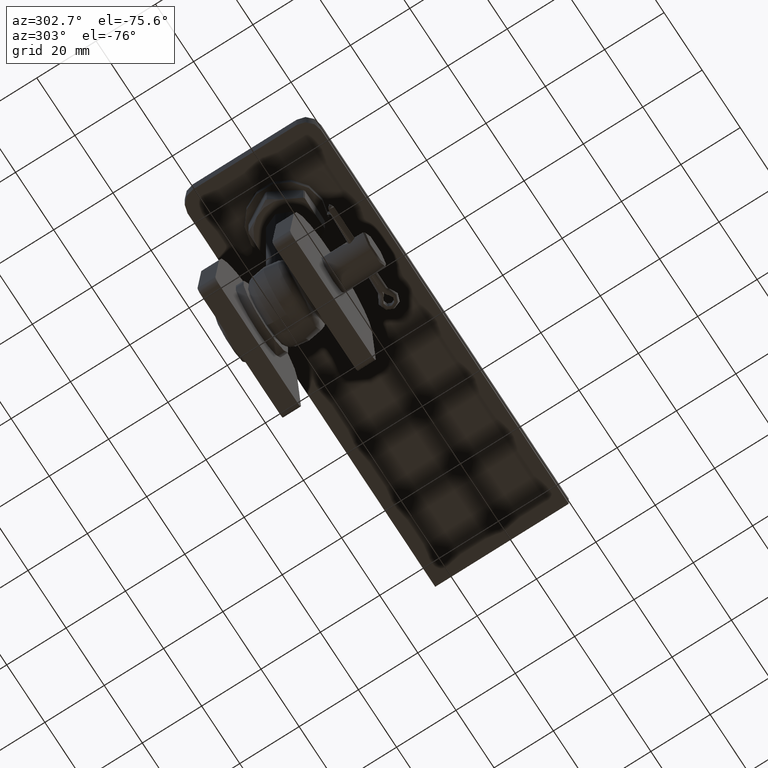
[diagram: clean part render]
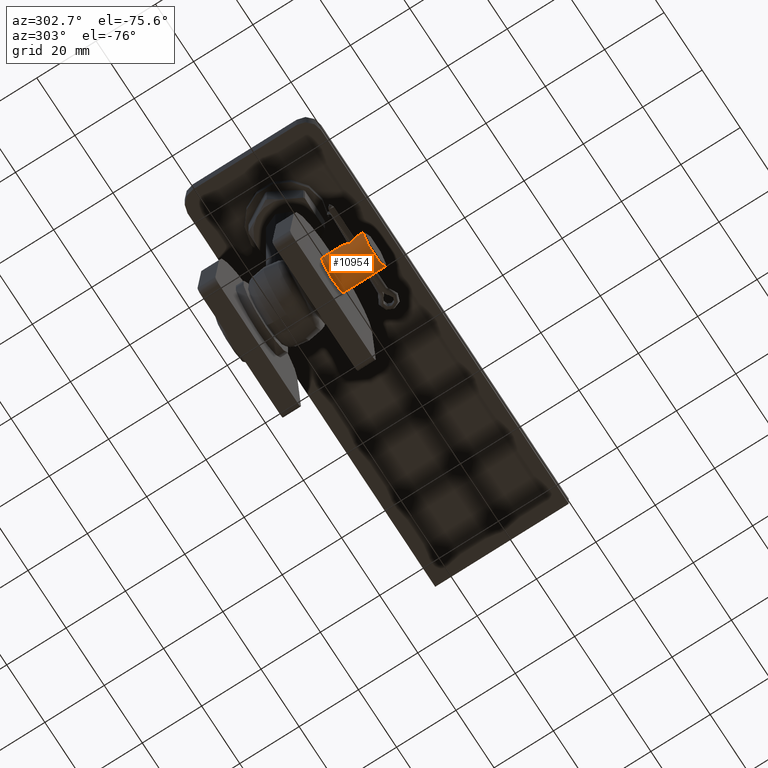
[diagram: same view with one face highlighted and labeled with its STEP entity id]
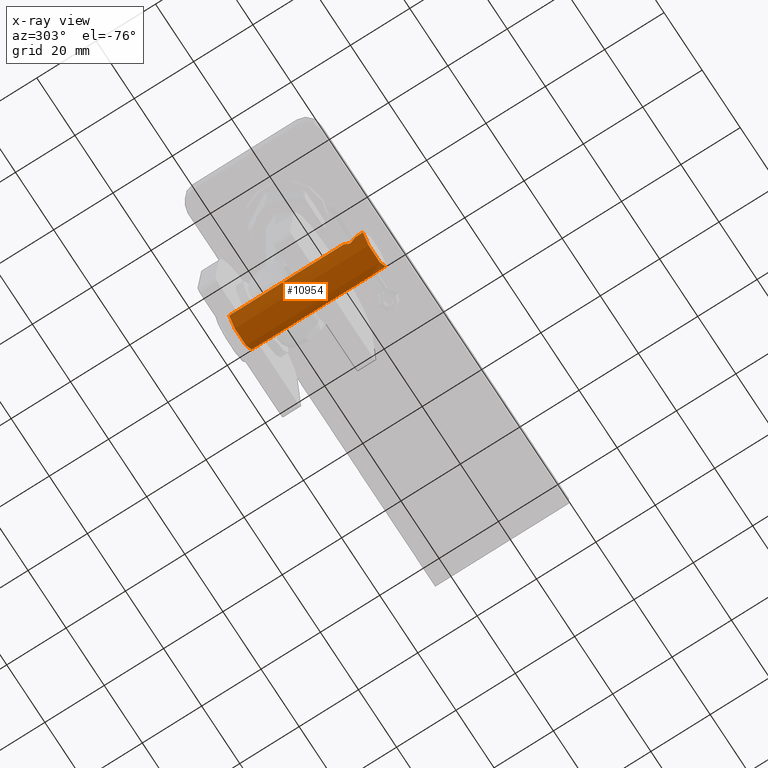
[diagram: x-ray of the same camera — body ghosted, the highlighted face saturated]
A machine part, auxiliary view. The second image highlights one B-rep face of the part: STEP entity #10954.
The next image is the same camera in x-ray: the body ghosted, the highlighted face saturated — about 1% of this face is hidden behind the body in this view.
In plain terms, the highlighted cylindrical surface (edge-blend (fillet) strip) has radius 5.9 mm, axis along (0, -1, -0).
Its self-contained STEP definition (entity closure, byte-faithful):
#316 = EDGE_CURVE ( 'NONE', #7649, #2120, #9481, .T. ) ;
#506 = DIRECTION ( 'NONE',  ( 6.129713608430679563E-17, -1.000000000000000000, 4.379057701015053347E-47 ) ) ;
#607 = ORIENTED_EDGE ( 'NONE', *, *, #3860, .T. ) ;
#630 = CARTESIAN_POINT ( 'NONE',  ( -5.555522010884786255, 44.26511975377648156, -1.986687002289867499 ) ) ;
#794 = ORIENTED_EDGE ( 'NONE', *, *, #4183, .T. ) ;
#848 = CARTESIAN_POINT ( 'NONE',  ( -5.900000000000003908, 41.99999999999999289, -0.1332516552440318192 ) ) ;
#921 = CARTESIAN_POINT ( 'NONE',  ( 5.878374954491230042, 45.93542901542142687, -0.5210698131243338693 ) ) ;
#986 = CARTESIAN_POINT ( 'NONE',  ( 5.895599326630836856, 42.01287025599111757, -0.2621545054870087488 ) ) ;
#1029 = CARTESIAN_POINT ( 'NONE',  ( 5.639810616716879110, 45.00432882881328567, -1.734419091715369010 ) ) ;
#1079 = CARTESIAN_POINT ( 'NONE',  ( 5.620304320527619524, 44.89003424455704305, -1.795826110056595981 ) ) ;
#1267 = FACE_OUTER_BOUND ( 'NONE', #3287, .T. ) ;
#1288 = DIRECTION ( 'NONE',  ( -6.129713608430659842E-17, 1.000000000000000000, -8.758115402030106693E-47 ) ) ;
#1361 = CARTESIAN_POINT ( 'NONE',  ( -5.900000000000002132, 49.00000000000000000, 0.000000000000000000 ) ) ;
#1555 = B_SPLINE_CURVE_WITH_KNOTS ( 'NONE', 3,
 ( #10265, #14382, #7636, #11835, #10378, #6280, #11613, #3800, #14273, #3854, #2452, #15722, #6220, #986, #11779, #5089 ),
 .UNSPECIFIED., .F., .F.,
 ( 4, 2, 2, 2, 2, 2, 2, 4 ),
 ( 0.000000000000000000, 0.0003938510962532042127, 0.0007877021925064084254, 0.001181553288759612692, 0.001575404385012816851, 0.002363106577519240130, 0.002756957673772455347, 0.003150808770025670998 ),
 .UNSPECIFIED. ) ;
#1689 = VERTEX_POINT ( 'NONE', #17169 ) ;
#1711 = CARTESIAN_POINT ( 'NONE',  ( -5.900000000000002132, 46.00000000000000000, 1.136091727279354788E-19 ) ) ;
#1752 = CARTESIAN_POINT ( 'NONE',  ( 5.900000000000000355, 3.399999999999986589, 7.225416114969385180E-16 ) ) ;
#1822 = CARTESIAN_POINT ( 'NONE',  ( -5.550675634551168969, 44.13152751276364683, -2.000000000000001776 ) ) ;
#2120 = VERTEX_POINT ( 'NONE', #6921 ) ;
#2316 = CARTESIAN_POINT ( 'NONE',  ( -5.573563969748891900, 43.47916577028971830, -1.935493276981657518 ) ) ;
#2391 = CARTESIAN_POINT ( 'NONE',  ( 5.587117308741708754, 44.64824387600961586, -1.896558001027449425 ) ) ;
#2452 = CARTESIAN_POINT ( 'NONE',  ( 5.818163038907217199, 42.25356430285038556, -1.008865050652530737 ) ) ;
#2648 = CARTESIAN_POINT ( 'NONE',  ( -5.865486782326236437, 42.10362839363019560, -0.6488026437898942733 ) ) ;
#2781 = VECTOR ( 'NONE', #1288, 1000.000000000000000 ) ;
#2871 = EDGE_CURVE ( 'NONE', #16589, #6365, #3002, .T. ) ;
#3002 = LINE ( 'NONE', #13485, #2781 ) ;
#3104 = CARTESIAN_POINT ( 'NONE',  ( -5.750927284106918336, 45.50701587245850277, -1.321294826407360956 ) ) ;
#3112 = VECTOR ( 'NONE', #12003, 1000.000000000000000 ) ;
#3211 = CARTESIAN_POINT ( 'NONE',  ( 5.900000000000996891, 41.99999999999704414, 2.951550274720281320E-13 ) ) ;
#3286 = CARTESIAN_POINT ( 'NONE',  ( -5.705515379762269745, 45.32319233728897956, -1.505350091066005147 ) ) ;
#3287 = EDGE_LOOP ( 'NONE', ( #4195, #15633, #3293, #4828, #794, #607, #5028, #4741, #3941, #4431 ) ) ;
#3293 = ORIENTED_EDGE ( 'NONE', *, *, #4512, .T. ) ;
#3419 = AXIS2_PLACEMENT_3D ( 'NONE', #4623, #8747, #11336 ) ;
#3544 = CYLINDRICAL_SURFACE ( 'NONE', #3419, 5.899999999999999467 ) ;
#3616 = CARTESIAN_POINT ( 'NONE',  ( -5.550675634551172521, 43.86838859694345416, -2.000000000000001332 ) ) ;
#3672 = CARTESIAN_POINT ( 'NONE',  ( -5.636520386917011294, 42.99151441506769800, -1.746630746085015673 ) ) ;
#3800 = CARTESIAN_POINT ( 'NONE',  ( 5.682510066624671730, 42.77844200055197632, -1.588962498794751488 ) ) ;
#3854 = CARTESIAN_POINT ( 'NONE',  ( 5.773340165744793140, 42.40221911355585149, -1.230499860934768819 ) ) ;
#3860 = EDGE_CURVE ( 'NONE', #10034, #8477, #12275, .T. ) ;
#3941 = ORIENTED_EDGE ( 'NONE', *, *, #14162, .T. ) ;
#4023 = DIRECTION ( 'NONE',  ( -6.129713608430659842E-17, 1.000000000000000000, -8.758115402030106693E-47 ) ) ;
#4027 = CARTESIAN_POINT ( 'NONE',  ( 5.899999999999997691, 49.00000000000000000, 7.225416114969384193E-16 ) ) ;
#4183 = EDGE_CURVE ( 'NONE', #10858, #10034, #5209, .T. ) ;
#4195 = ORIENTED_EDGE ( 'NONE', *, *, #5309, .F. ) ;
#4381 = CARTESIAN_POINT ( 'NONE',  ( -5.900000000000001243, 45.99999999999999289, -0.1311765982400691921 ) ) ;
#4386 = EDGE_CURVE ( 'NONE', #14621, #7778, #1555, .T. ) ;
#4431 = ORIENTED_EDGE ( 'NONE', *, *, #4386, .T. ) ;
#4512 = EDGE_CURVE ( 'NONE', #2120, #1689, #16805, .T. ) ;
#4623 = CARTESIAN_POINT ( 'NONE',  ( -3.003559668131025122E-15, 49.00000000000000000, 0.000000000000000000 ) ) ;
#4741 = ORIENTED_EDGE ( 'NONE', *, *, #2871, .F. ) ;
#4811 = AXIS2_PLACEMENT_3D ( 'NONE', #12622, #506, #10009 ) ;
#4828 = ORIENTED_EDGE ( 'NONE', *, *, #15833, .T. ) ;
#4852 = CARTESIAN_POINT ( 'NONE',  ( 5.705341729613110147, 45.32242786799923806, -1.505984244638788327 ) ) ;
#4910 = CARTESIAN_POINT ( 'NONE',  ( 5.573582263797199232, 44.52078962926324124, -1.935438627828777403 ) ) ;
#4945 = CARTESIAN_POINT ( 'NONE',  ( -5.550675634551168969, 44.00000000000000000, -2.000000000000000888 ) ) ;
#4999 = CARTESIAN_POINT ( 'NONE',  ( -5.750358196939544086, 42.49517398356263698, -1.323729845256276461 ) ) ;
#5028 = ORIENTED_EDGE ( 'NONE', *, *, #16324, .T. ) ;
#5089 = CARTESIAN_POINT ( 'NONE',  ( 5.900000000000996891, 41.99999999999704414, 2.951550274720281320E-13 ) ) ;
#5209 = B_SPLINE_CURVE_WITH_KNOTS ( 'NONE', 3,
 ( #8394, #1822, #630, #7178, #15075, #13919, #13756, #11078, #3286, #3104, #12404, #9839, #5769, #7121, #9901, #16419, #4381, #1711 ),
 .UNSPECIFIED., .F., .F.,
 ( 4, 2, 2, 2, 2, 2, 2, 2, 4 ),
 ( 0.003150978226249538227, 0.003544599446795418211, 0.003938220667341298629, 0.004331841887887178180, 0.004725463108433058598, 0.005119084328978939016, 0.005512705549524818567, 0.005906326770070698985, 0.006299947990616579403 ),
 .UNSPECIFIED. ) ;
#5309 = EDGE_CURVE ( 'NONE', #7649, #7778, #14236, .T. ) ;
#5769 = CARTESIAN_POINT ( 'NONE',  ( -5.834011360990279726, 45.79664816083570855, -0.8882865382681676136 ) ) ;
#5860 = AXIS2_PLACEMENT_3D ( 'NONE', #15315, #16609, #7235 ) ;
#6035 = CARTESIAN_POINT ( 'NONE',  ( -5.900000000000002132, 48.50000000000000000, 2.018745600167939966E-45 ) ) ;
#6085 = CARTESIAN_POINT ( 'NONE',  ( -5.900000000000003908, 41.99999999999999289, -2.618725969575589285E-31 ) ) ;
#6220 = CARTESIAN_POINT ( 'NONE',  ( 5.878387453272812202, 42.06453306663481584, -0.5209389159219351972 ) ) ;
#6280 = CARTESIAN_POINT ( 'NONE',  ( 5.620361640698056327, 43.10960785668599726, -1.795647244238945728 ) ) ;
#6365 = VERTEX_POINT ( 'NONE', #14719 ) ;
#6800 = DIRECTION ( 'NONE',  ( -6.129713608430659842E-17, 1.000000000000000000, -8.758115402030106693E-47 ) ) ;
#6921 = CARTESIAN_POINT ( 'NONE',  ( -5.899999999999999467, 3.399999999999986144, -5.473822126268816683E-45 ) ) ;
#7121 = CARTESIAN_POINT ( 'NONE',  ( -5.865616418737308102, 45.89676356603328600, -0.6475226347174090069 ) ) ;
#7178 = CARTESIAN_POINT ( 'NONE',  ( -5.573726201817198245, 44.52238629694961958, -1.935026171830568575 ) ) ;
#7235 = DIRECTION ( 'NONE',  ( -1.000000000000000000, -7.350523203291556237E-17, 0.000000000000000000 ) ) ;
#7479 = CARTESIAN_POINT ( 'NONE',  ( 5.900000000000265032, 46.00000000000078870, 6.985093512761478824E-14 ) ) ;
#7636 = CARTESIAN_POINT ( 'NONE',  ( 5.555475045518475596, 43.73592520360117675, -1.986816811580287556 ) ) ;
#7649 = VERTEX_POINT ( 'NONE', #1752 ) ;
#7672 = CARTESIAN_POINT ( 'NONE',  ( 5.895588975440277046, 45.98709907540573028, -0.2623670871246310821 ) ) ;
#7778 = VERTEX_POINT ( 'NONE', #3211 ) ;
#7938 = CARTESIAN_POINT ( 'NONE',  ( 5.550675634551163640, 44.00000000000000000, -2.000000000000000888 ) ) ;
#8394 = CARTESIAN_POINT ( 'NONE',  ( -5.550675634551168969, 44.00000000000000000, -2.000000000000000888 ) ) ;
#8477 = VERTEX_POINT ( 'NONE', #6035 ) ;
#8602 = VECTOR ( 'NONE', #6800, 1000.000000000000000 ) ;
#8747 = DIRECTION ( 'NONE',  ( -6.129713608430659842E-17, 1.000000000000000000, -8.758115402030106693E-47 ) ) ;
#8786 = CARTESIAN_POINT ( 'NONE',  ( 5.773235008116887279, 45.59743773479016227, -1.231019385758636009 ) ) ;
#8892 = CARTESIAN_POINT ( 'NONE',  ( -5.587100216405382014, 43.35203464299526388, -1.896597329605877347 ) ) ;
#9310 = CARTESIAN_POINT ( 'NONE',  ( -5.900000000000002132, 49.00000000000000000, 0.000000000000000000 ) ) ;
#9341 = CARTESIAN_POINT ( 'NONE',  ( -5.833657514709226888, 42.20449169460976435, -0.8906851662114491086 ) ) ;
#9481 = CIRCLE ( 'NONE', #5860, 5.899999999999999467 ) ;
#9839 = CARTESIAN_POINT ( 'NONE',  ( -5.814765802820893725, 45.73387145799424758, -1.005285777694050475 ) ) ;
#9901 = CARTESIAN_POINT ( 'NONE',  ( -5.878233505568982054, 45.93500093197677359, -0.5227012412732552349 ) ) ;
#10009 = DIRECTION ( 'NONE',  ( 1.000000000000000000, 0.000000000000000000, 0.000000000000000000 ) ) ;
#10034 = VERTEX_POINT ( 'NONE', #14436 ) ;
#10121 = CARTESIAN_POINT ( 'NONE',  ( -5.895494527533561957, 42.01318229712092744, -0.2640867251274089944 ) ) ;
#10142 = CARTESIAN_POINT ( 'NONE',  ( 5.682249950057292942, 45.22031844158775016, -1.589877002542363638 ) ) ;
#10265 = CARTESIAN_POINT ( 'NONE',  ( 5.550675634551163640, 44.00000000000000000, -2.000000000000000888 ) ) ;
#10293 = CARTESIAN_POINT ( 'NONE',  ( -5.682547236286341175, 42.77001183779141513, -1.598179368125638433 ) ) ;
#10378 = CARTESIAN_POINT ( 'NONE',  ( 5.587166169225694645, 43.35134061389256033, -1.896414563177825530 ) ) ;
#10591 = B_SPLINE_CURVE_WITH_KNOTS ( 'NONE', 3,
 ( #6085, #848, #10121, #16979, #2648, #9341, #14243, #12947, #4999, #10293, #3672, #8892, #2316, #11638, #3616, #4945 ),
 .UNSPECIFIED., .F., .F.,
 ( 4, 2, 2, 2, 2, 2, 2, 4 ),
 ( 0.000000000000000000, 0.0003938722782811907063, 0.0007877445565623814126, 0.001181616834843572444, 0.001575489113124763476, 0.002363233669687160501, 0.002757105947968348930, 0.003150978226249538227 ),
 .UNSPECIFIED. ) ;
#10858 = VERTEX_POINT ( 'NONE', #15984 ) ;
#10954 = ADVANCED_FACE ( 'NONE', ( #1267 ), #3544, .T. ) ;
#11078 = CARTESIAN_POINT ( 'NONE',  ( -5.682498466873040499, 45.22145324877805450, -1.588986457125476814 ) ) ;
#11336 = DIRECTION ( 'NONE',  ( -1.000000000000000000, 0.000000000000000000, 0.000000000000000000 ) ) ;
#11613 = CARTESIAN_POINT ( 'NONE',  ( 5.639902868125350466, 42.99511809121005257, -1.734133246892582969 ) ) ;
#11638 = CARTESIAN_POINT ( 'NONE',  ( -5.555361702166335292, 43.73789961493475431, -1.987135100648104169 ) ) ;
#11651 = CARTESIAN_POINT ( 'NONE',  ( 5.555474431772287502, 44.26400520583703724, -1.986818001562003166 ) ) ;
#11712 = CARTESIAN_POINT ( 'NONE',  ( 5.550675634551162752, 44.13320091186650274, -2.000000000000001776 ) ) ;
#11779 = CARTESIAN_POINT ( 'NONE',  ( 5.900000000000009237, 41.99999999999995737, -0.1316382662648614421 ) ) ;
#11835 = CARTESIAN_POINT ( 'NONE',  ( 5.573608027290543276, 43.47890599831494285, -1.935364973920682630 ) ) ;
#12003 = DIRECTION ( 'NONE',  ( -6.129713608430659842E-17, 1.000000000000000000, -8.758115402030106693E-47 ) ) ;
#12275 = LINE ( 'NONE', #1361, #3112 ) ;
#12404 = CARTESIAN_POINT ( 'NONE',  ( -5.773250987007370938, 45.58909906870948703, -1.221341016058853146 ) ) ;
#12622 = CARTESIAN_POINT ( 'NONE',  ( -2.972911100088870529E-15, 48.50000000000000000, 0.000000000000000000 ) ) ;
#12932 = CIRCLE ( 'NONE', #4811, 5.899999999999999467 ) ;
#12947 = CARTESIAN_POINT ( 'NONE',  ( -5.773124037455564128, 42.41135148559263968, -1.221972236183714866 ) ) ;
#13485 = CARTESIAN_POINT ( 'NONE',  ( 5.899999999999997691, 49.00000000000000000, 7.225416114969384193E-16 ) ) ;
#13756 = CARTESIAN_POINT ( 'NONE',  ( -5.640107500936399454, 45.00596810836876216, -1.733451517875132186 ) ) ;
#13919 = CARTESIAN_POINT ( 'NONE',  ( -5.620411466758669761, 44.89081106972703594, -1.795500579964752541 ) ) ;
#14162 = EDGE_CURVE ( 'NONE', #16589, #14621, #17066, .T. ) ;
#14236 = LINE ( 'NONE', #4027, #8602 ) ;
#14243 = CARTESIAN_POINT ( 'NONE',  ( -5.814780710730587110, 42.26606872559321459, -1.005237575882717227 ) ) ;
#14273 = CARTESIAN_POINT ( 'NONE',  ( 5.705541065015032665, 42.67672352945655234, -1.505223504904761089 ) ) ;
#14382 = CARTESIAN_POINT ( 'NONE',  ( 5.550675634551165416, 43.86674138672847789, -2.000000000000001332 ) ) ;
#14436 = CARTESIAN_POINT ( 'NONE',  ( -5.900000000000002132, 46.00000000000000000, 1.136091727279354788E-19 ) ) ;
#14621 = VERTEX_POINT ( 'NONE', #7938 ) ;
#14719 = CARTESIAN_POINT ( 'NONE',  ( 5.899999999999997691, 48.50000000000000000, 7.225416114969384193E-16 ) ) ;
#15075 = CARTESIAN_POINT ( 'NONE',  ( -5.587016900554445442, 44.64751614138711489, -1.896863079203431113 ) ) ;
#15315 = CARTESIAN_POINT ( 'NONE',  ( -2.084102626866440173E-16, 3.399999999999986144, -5.473822126268816683E-45 ) ) ;
#15485 = CARTESIAN_POINT ( 'NONE',  ( 5.900000000000265032, 46.00000000000078870, 6.985093512761478824E-14 ) ) ;
#15540 = CARTESIAN_POINT ( 'NONE',  ( 5.550675634551163640, 44.00000000000000000, -2.000000000000000888 ) ) ;
#15590 = CARTESIAN_POINT ( 'NONE',  ( 5.865528182572968596, 45.89649307208217976, -0.6483361322621464806 ) ) ;
#15633 = ORIENTED_EDGE ( 'NONE', *, *, #316, .T. ) ;
#15722 = CARTESIAN_POINT ( 'NONE',  ( 5.865545251638775603, 42.10345703363582714, -0.6481406949199463030 ) ) ;
#15833 = EDGE_CURVE ( 'NONE', #1689, #10858, #10591, .T. ) ;
#15984 = CARTESIAN_POINT ( 'NONE',  ( -5.550675634551168969, 44.00000000000000000, -2.000000000000000888 ) ) ;
#16324 = EDGE_CURVE ( 'NONE', #8477, #6365, #12932, .T. ) ;
#16380 = VECTOR ( 'NONE', #4023, 1000.000000000000000 ) ;
#16419 = CARTESIAN_POINT ( 'NONE',  ( -5.895533063006356933, 45.98693471401512767, -0.2636961065721069586 ) ) ;
#16589 = VERTEX_POINT ( 'NONE', #7479 ) ;
#16609 = DIRECTION ( 'NONE',  ( -6.129713608430659842E-17, 1.000000000000000000, -8.758115402030106693E-47 ) ) ;
#16768 = CARTESIAN_POINT ( 'NONE',  ( 5.818035033277333845, 45.74602179139721869, -1.009708252603350065 ) ) ;
#16805 = LINE ( 'NONE', #9310, #16380 ) ;
#16818 = CARTESIAN_POINT ( 'NONE',  ( 5.900000000000001243, 46.00000000000001421, -0.1317953664873972863 ) ) ;
#16979 = CARTESIAN_POINT ( 'NONE',  ( -5.878347617362613242, 42.06465518037527573, -0.5211782919634722067 ) ) ;
#17066 = B_SPLINE_CURVE_WITH_KNOTS ( 'NONE', 3,
 ( #15485, #16818, #7672, #921, #15590, #16768, #8786, #4852, #10142, #1029, #1079, #2391, #4910, #11651, #11712, #15540 ),
 .UNSPECIFIED., .F., .F.,
 ( 4, 2, 2, 2, 2, 2, 2, 4 ),
 ( 0.009448478236193871491, 0.009842158793664859684, 0.01023583935113584614, 0.01102320046607782947, 0.01141688102354882287, 0.01181056158101981453, 0.01220424213849080619, 0.01259792269596179959 ),
 .UNSPECIFIED. ) ;
#17169 = CARTESIAN_POINT ( 'NONE',  ( -5.900000000000003908, 41.99999999999999289, -2.618725969575589285E-31 ) ) ;